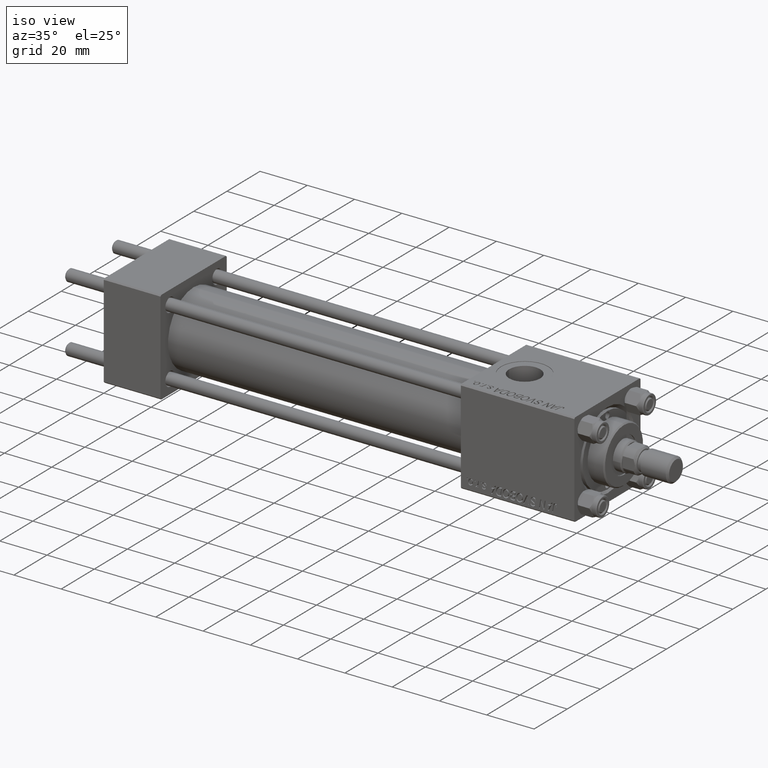
[diagram: clean part render]
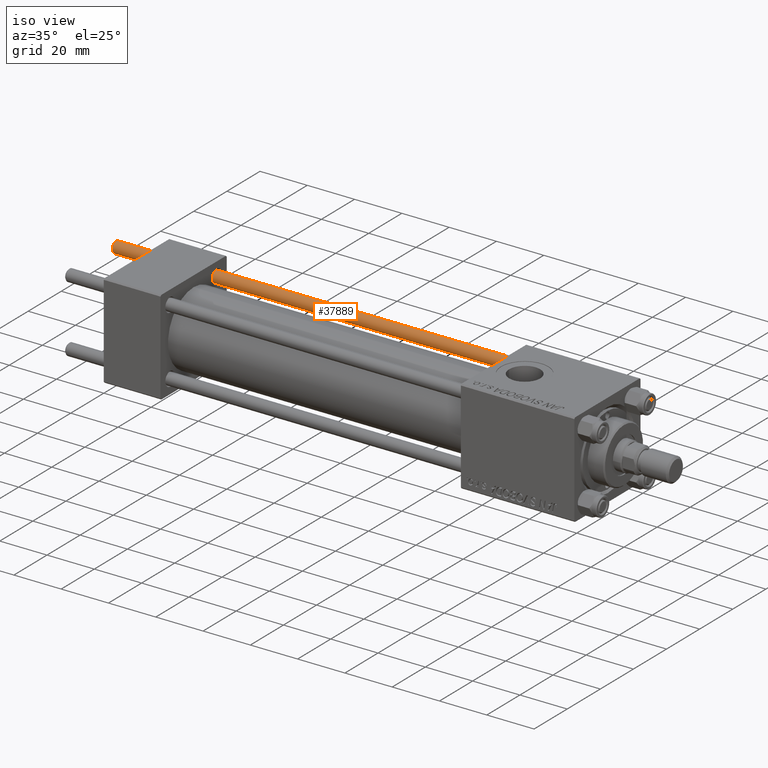
[diagram: same view with one face highlighted and labeled with its STEP entity id]
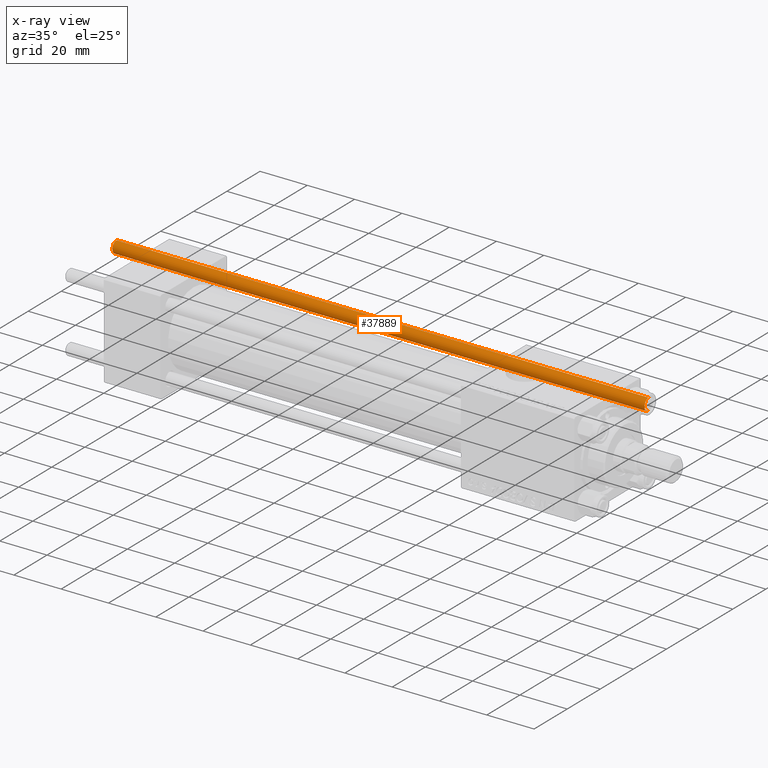
[diagram: x-ray of the same camera — body ghosted, the highlighted face saturated]
A machine part, iso view. The second image highlights one B-rep face of the part: STEP entity #37889.
The next image is the same camera in x-ray: the body ghosted, the highlighted face saturated — about 0% of this face is hidden behind the body in this view.
In plain terms, the highlighted cylindrical surface (edge-blend (fillet) strip) has radius 2.5 mm, axis along (-1, -0, -0).
Its self-contained STEP definition (entity closure, byte-faithful):
#1146 = VERTEX_POINT ( 'NONE', #32848 ) ;
#4361 = CARTESIAN_POINT ( 'NONE',  ( 0.000000000000000000, 0.000000000000000000, 225.5000000000000284 ) ) ;
#4557 = EDGE_CURVE ( 'NONE', #41733, #45224, #27070, .T. ) ;
#5912 = FACE_OUTER_BOUND ( 'NONE', #22734, .T. ) ;
#6117 = AXIS2_PLACEMENT_3D ( 'NONE', #24953, #28756, #44580 ) ;
#6160 = DIRECTION ( 'NONE',  ( -0.000000000000000000, -0.000000000000000000, -1.000000000000000000 ) ) ;
#10941 = CARTESIAN_POINT ( 'NONE',  ( -2.500000000000000000, 0.000000000000000000, 225.5000000000000284 ) ) ;
#10950 = ORIENTED_EDGE ( 'NONE', *, *, #15671, .F. ) ;
#11726 = DIRECTION ( 'NONE',  ( 1.000000000000000000, 0.000000000000000000, 0.000000000000000000 ) ) ;
#13451 = CIRCLE ( 'NONE', #6117, 2.500000000000000000 ) ;
#14141 = LINE ( 'NONE', #40922, #20750 ) ;
#15671 = EDGE_CURVE ( 'NONE', #1146, #49301, #14141, .T. ) ;
#19627 = DIRECTION ( 'NONE',  ( 0.000000000000000000, 0.000000000000000000, -1.000000000000000000 ) ) ;
#20562 = ORIENTED_EDGE ( 'NONE', *, *, #23831, .T. ) ;
#20750 = VECTOR ( 'NONE', #21061, 1000.000000000000000 ) ;
#21061 = DIRECTION ( 'NONE',  ( -0.000000000000000000, -0.000000000000000000, -1.000000000000000000 ) ) ;
#21688 = DIRECTION ( 'NONE',  ( -1.000000000000000000, 0.000000000000000000, 0.000000000000000000 ) ) ;
#22734 = EDGE_LOOP ( 'NONE', ( #10950, #20562, #43077, #37285 ) ) ;
#23831 = EDGE_CURVE ( 'NONE', #1146, #41733, #25910, .T. ) ;
#23979 = AXIS2_PLACEMENT_3D ( 'NONE', #45643, #6160, #21688 ) ;
#24953 = CARTESIAN_POINT ( 'NONE',  ( 0.000000000000000000, 0.000000000000000000, 0.4999999999999726885 ) ) ;
#25417 = VECTOR ( 'NONE', #46704, 1000.000000000000000 ) ;
#25910 = CIRCLE ( 'NONE', #49536, 2.500000000000000000 ) ;
#27070 = LINE ( 'NONE', #27580, #25417 ) ;
#27580 = CARTESIAN_POINT ( 'NONE',  ( -2.500000000000000000, 0.000000000000000000, 226.0000000000000000 ) ) ;
#28082 = CARTESIAN_POINT ( 'NONE',  ( 2.500000000000000000, 3.061616997868383141E-16, 0.4999999999999726885 ) ) ;
#28756 = DIRECTION ( 'NONE',  ( -0.000000000000000000, -0.000000000000000000, 1.000000000000000000 ) ) ;
#31093 = CARTESIAN_POINT ( 'NONE',  ( -2.500000000000000000, 0.000000000000000000, 0.4999999999999726885 ) ) ;
#32848 = CARTESIAN_POINT ( 'NONE',  ( 2.500000000000000000, 3.061616997868383141E-16, 225.5000000000000284 ) ) ;
#37285 = ORIENTED_EDGE ( 'NONE', *, *, #43283, .T. ) ;
#37889 = ADVANCED_FACE ( 'NONE', ( #5912 ), #41053, .T. ) ;
#40922 = CARTESIAN_POINT ( 'NONE',  ( 2.500000000000000000, 3.061616997868383141E-16, 226.0000000000000000 ) ) ;
#41053 = CYLINDRICAL_SURFACE ( 'NONE', #23979, 2.500000000000000000 ) ;
#41733 = VERTEX_POINT ( 'NONE', #10941 ) ;
#43077 = ORIENTED_EDGE ( 'NONE', *, *, #4557, .T. ) ;
#43283 = EDGE_CURVE ( 'NONE', #45224, #49301, #13451, .T. ) ;
#44580 = DIRECTION ( 'NONE',  ( 1.000000000000000000, 0.000000000000000000, 0.000000000000000000 ) ) ;
#45224 = VERTEX_POINT ( 'NONE', #31093 ) ;
#45643 = CARTESIAN_POINT ( 'NONE',  ( 0.000000000000000000, 0.000000000000000000, 226.0000000000000000 ) ) ;
#46704 = DIRECTION ( 'NONE',  ( -0.000000000000000000, -0.000000000000000000, -1.000000000000000000 ) ) ;
#49301 = VERTEX_POINT ( 'NONE', #28082 ) ;
#49536 = AXIS2_PLACEMENT_3D ( 'NONE', #4361, #19627, #11726 ) ;